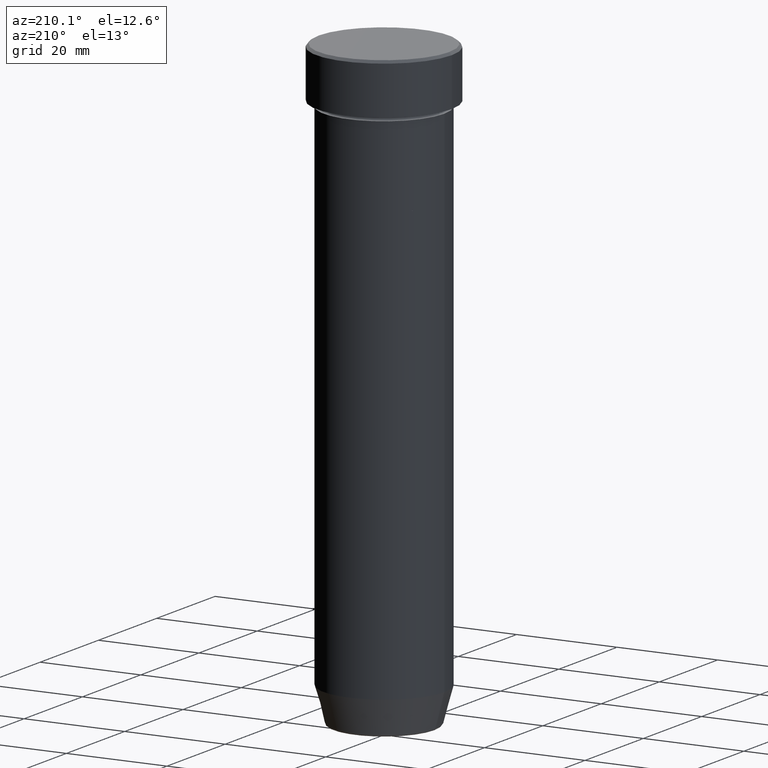
[diagram: clean part render]
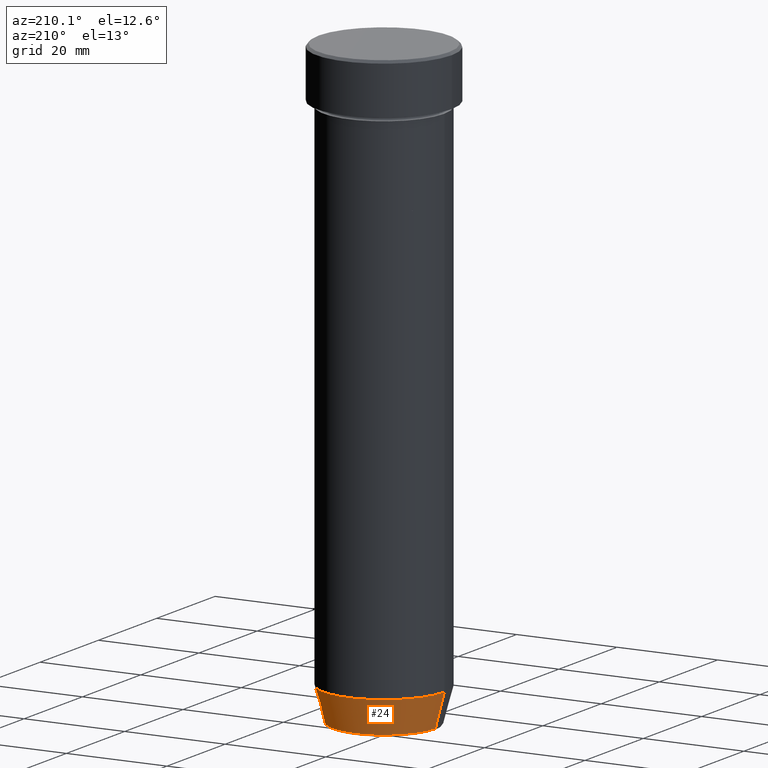
[diagram: same view with one face highlighted and labeled with its STEP entity id]
A machine part, auxiliary view. The second image highlights one B-rep face of the part: STEP entity #24.
In plain terms, the highlighted conical surface has half-angle 15 deg.
Its self-contained STEP definition (entity closure, byte-faithful):
#11 = CARTESIAN_POINT ( 'NONE',  ( -10.12435565298213369, 1.239875974385398152E-15, -120.0000000000000000 ) ) ;
#13 = DIRECTION ( 'NONE',  ( -1.000000000000000000, 0.000000000000000000, 0.000000000000000000 ) ) ;
#24 = ADVANCED_FACE ( 'NONE', ( #32 ), #529, .T. ) ;
#28 = VERTEX_POINT ( 'NONE', #172 ) ;
#30 = ORIENTED_EDGE ( 'NONE', *, *, #521, .F. ) ;
#32 = FACE_OUTER_BOUND ( 'NONE', #118, .T. ) ;
#51 = DIRECTION ( 'NONE',  ( -0.000000000000000000, -0.000000000000000000, 1.000000000000000000 ) ) ;
#55 = DIRECTION ( 'NONE',  ( -0.2588190451025214611, 3.169619151431774186E-17, 0.9659258262890679791 ) ) ;
#59 = LINE ( 'NONE', #11, #473 ) ;
#72 = VERTEX_POINT ( 'NONE', #149 ) ;
#99 = CARTESIAN_POINT ( 'NONE',  ( 12.00000000000000000, 0.000000000000000000, -112.9999999999999858 ) ) ;
#118 = EDGE_LOOP ( 'NONE', ( #354, #263, #218, #30 ) ) ;
#128 = CIRCLE ( 'NONE', #139, 12.00000000000000000 ) ;
#139 = AXIS2_PLACEMENT_3D ( 'NONE', #484, #51, #522 ) ;
#149 = CARTESIAN_POINT ( 'NONE',  ( 10.22365507213718416, 0.000000000000000000, -119.6294095225512564 ) ) ;
#171 = LINE ( 'NONE', #508, #525 ) ;
#172 = CARTESIAN_POINT ( 'NONE',  ( -10.22365507213718416, 1.360806402472381955E-15, -119.6294095225512564 ) ) ;
#218 = ORIENTED_EDGE ( 'NONE', *, *, #283, .F. ) ;
#220 = DIRECTION ( 'NONE',  ( 0.2588190451025214611, 0.000000000000000000, 0.9659258262890679791 ) ) ;
#223 = CARTESIAN_POINT ( 'NONE',  ( 0.000000000000000000, 0.000000000000000000, -120.0000000000000000 ) ) ;
#229 = VERTEX_POINT ( 'NONE', #466 ) ;
#249 = AXIS2_PLACEMENT_3D ( 'NONE', #223, #405, #589 ) ;
#254 = AXIS2_PLACEMENT_3D ( 'NONE', #379, #481, #13 ) ;
#263 = ORIENTED_EDGE ( 'NONE', *, *, #297, .T. ) ;
#270 = VERTEX_POINT ( 'NONE', #99 ) ;
#283 = EDGE_CURVE ( 'NONE', #270, #229, #128, .T. ) ;
#297 = EDGE_CURVE ( 'NONE', #28, #229, #59, .T. ) ;
#340 = EDGE_CURVE ( 'NONE', #72, #28, #583, .T. ) ;
#354 = ORIENTED_EDGE ( 'NONE', *, *, #340, .T. ) ;
#379 = CARTESIAN_POINT ( 'NONE',  ( 0.000000000000000000, 0.000000000000000000, -119.6294095225512564 ) ) ;
#405 = DIRECTION ( 'NONE',  ( -0.000000000000000000, -0.000000000000000000, 1.000000000000000000 ) ) ;
#466 = CARTESIAN_POINT ( 'NONE',  ( -12.00000000000000000, 1.469576158976823947E-15, -112.9999999999999858 ) ) ;
#473 = VECTOR ( 'NONE', #55, 1000.000000000000114 ) ;
#481 = DIRECTION ( 'NONE',  ( -0.000000000000000000, -0.000000000000000000, 1.000000000000000000 ) ) ;
#484 = CARTESIAN_POINT ( 'NONE',  ( 0.000000000000000000, 0.000000000000000000, -112.9999999999999858 ) ) ;
#508 = CARTESIAN_POINT ( 'NONE',  ( 10.12435565298213369, 0.000000000000000000, -120.0000000000000000 ) ) ;
#521 = EDGE_CURVE ( 'NONE', #72, #270, #171, .T. ) ;
#522 = DIRECTION ( 'NONE',  ( 1.000000000000000000, 0.000000000000000000, 0.000000000000000000 ) ) ;
#525 = VECTOR ( 'NONE', #220, 1000.000000000000114 ) ;
#529 = CONICAL_SURFACE ( 'NONE', #249, 10.12435565298213369, 0.2617993877991502405 ) ;
#583 = CIRCLE ( 'NONE', #254, 10.22365507213718416 ) ;
#589 = DIRECTION ( 'NONE',  ( 1.000000000000000000, 0.000000000000000000, 0.000000000000000000 ) ) ;